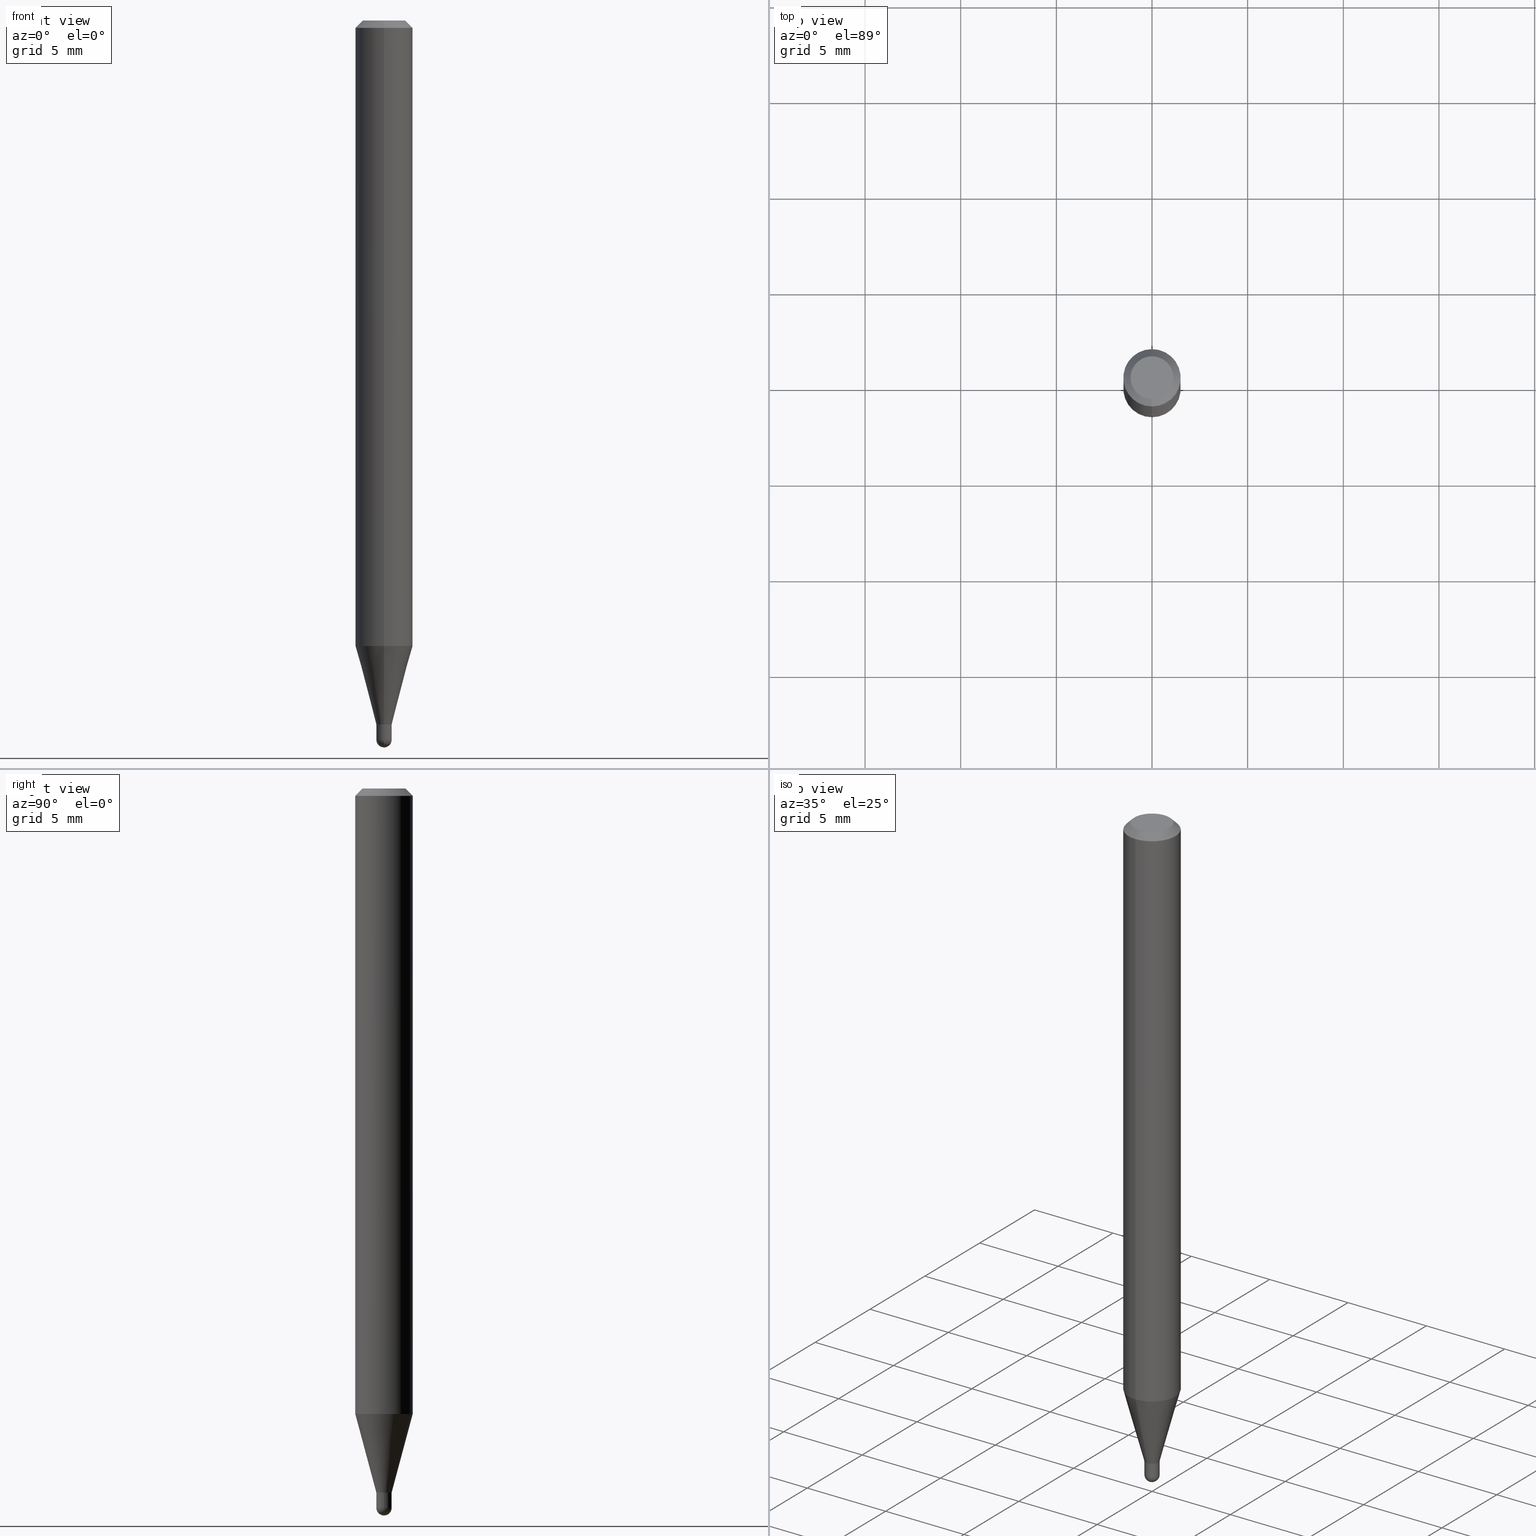
[diagram: canonical four-view strip — front | top / right | iso, engineering-drawing reading convention]
A machine part, canonical four-view strip (front | top / right | iso — engineering-drawing reading convention). The complete STEP part file that produces these views, byte-faithful:
ISO-10303-21;
HEADER;
FILE_DESCRIPTION (( 'STEP AP203' ),
    '1' );
FILE_NAME ('05050.STEP',
    '2024-03-08T21:14:56',
    ( '' ),
    ( '' ),
    'SwSTEP 2.0',
    'SolidWorks 2023',
    '' );
FILE_SCHEMA (( 'CONFIG_CONTROL_DESIGN' ));
ENDSEC;

DATA;
#1 = DIRECTION ( 'NONE',  ( -2.445468806185136597E-29, 3.491481338843145583E-15, 1.000000000000000000 ) ) ;
#2 = ORIENTED_EDGE ( 'NONE', *, *, #243, .T. ) ;
#3 = EDGE_CURVE ( 'NONE', #98, #28, #457, .T. ) ;
#4 = FACE_OUTER_BOUND ( 'NONE', #6, .T. ) ;
#5 = CARTESIAN_POINT ( 'NONE',  ( 3.656645550575395810E-29, -5.226498459106215376E-15, -1.496099999999999985 ) ) ;
#6 = EDGE_LOOP ( 'NONE', ( #297, #286, #281, #486, #69 ) ) ;
#7 = DIRECTION ( 'NONE',  ( -6.982962677686265922E-15, -1.000000000000000000, 3.505890868245046092E-15 ) ) ;
#8 = EDGE_CURVE ( 'NONE', #148, #409, #408, .T. ) ;
#9 = CIRCLE ( 'NONE', #324, 0.05904999999999999832 ) ;
#10 = ORIENTED_EDGE ( 'NONE', *, *, #497, .F. ) ;
#11 = DIRECTION ( 'NONE',  ( -6.982962677686265922E-15, -1.000000000000000000, 3.491515819682548909E-15 ) ) ;
#12 = DIRECTION ( 'NONE',  ( 2.445444728343672060E-29, -3.491515819682548515E-15, -1.000000000000000000 ) ) ;
#13 = ORIENTED_EDGE ( 'NONE', *, *, #294, .F. ) ;
#14 = CONICAL_SURFACE ( 'NONE', #484, 0.01574999999999964970, 0.2617993877991573459 ) ;
#15 = AXIS2_PLACEMENT_3D ( 'NONE', #464, #228, #71 ) ;
#16 = ORIENTED_EDGE ( 'NONE', *, *, #221, .F. ) ;
#17 =( GEOMETRIC_REPRESENTATION_CONTEXT ( 3 ) GLOBAL_UNCERTAINTY_ASSIGNED_CONTEXT ( ( #272 ) ) GLOBAL_UNIT_ASSIGNED_CONTEXT ( ( #439, #125, #245 ) ) REPRESENTATION_CONTEXT ( 'NONE', 'WORKASPACE' ) );
#18 = PERSON ( 'UNSPECIFIED', 'UNSPECIFIED', 'UNSPECIFIED', ('UNSPECIFIED'), ('UNSPECIFIED'), ('UNSPECIFIED') ) ;
#19 = PERSON_AND_ORGANIZATION_ROLE ( 'classification_officer' ) ;
#20 = APPROVAL ( #329, 'UNSPECIFIED' ) ;
#21 = CARTESIAN_POINT ( 'NONE',  ( 1.119104808822521909E-16, 0.01574999999999508737, -1.448400000000000132 ) ) ;
#22 = PERSON_AND_ORGANIZATION ( #18, #134 ) ;
#23 = VECTOR ( 'NONE', #201, 39.37007874015748143 ) ;
#24 = ADVANCED_FACE ( 'NONE', ( #104 ), #85, .T. ) ;
#25 = CARTESIAN_POINT ( 'NONE',  ( -0.01575000000000000011, -5.001800375020926187E-15, -1.448899999999999855 ) ) ;
#26 = EDGE_LOOP ( 'NONE', ( #316, #293, #353, #219 ) ) ;
#27 = PERSON_AND_ORGANIZATION_ROLE ( 'creator' ) ;
#28 = VERTEX_POINT ( 'NONE', #404 ) ;
#29 = CC_DESIGN_PERSON_AND_ORGANIZATION_ASSIGNMENT ( #145, #19, ( #325 ) ) ;
#30 = LINE ( 'NONE', #186, #508 ) ;
#31 = VERTEX_POINT ( 'NONE', #25 ) ;
#32 = FACE_OUTER_BOUND ( 'NONE', #241, .T. ) ;
#33 = VECTOR ( 'NONE', #418, 39.37007874015748854 ) ;
#34 = FACE_OUTER_BOUND ( 'NONE', #84, .T. ) ;
#35 = EDGE_CURVE ( 'NONE', #416, #208, #30, .T. ) ;
#36 = DIRECTION ( 'NONE',  ( -6.982962677686265922E-15, -1.000000000000000000, 0.000000000000000000 ) ) ;
#37 = EDGE_CURVE ( 'NONE', #191, #128, #332, .T. ) ;
#38 = DIRECTION ( 'NONE',  ( -6.982962677686265922E-15, -1.000000000000000000, 0.000000000000000000 ) ) ;
#39 = ORIENTED_EDGE ( 'NONE', *, *, #100, .F. ) ;
#40 = CARTESIAN_POINT ( 'NONE',  ( 3.543204866897145919E-29, -5.058857271138045478E-15, -1.448899999999999855 ) ) ;
#41 = CARTESIAN_POINT ( 'NONE',  ( 1.101341240428516307E-16, 0.01524999999999494121, -1.448899999999999633 ) ) ;
#42 = CIRCLE ( 'NONE', #475, 0.01524999999999999793 ) ;
#43 = LINE ( 'NONE', #47, #76 ) ;
#44 = AXIS2_PLACEMENT_3D ( 'NONE', #428, #506, #195 ) ;
#45 = ORIENTED_EDGE ( 'NONE', *, *, #341, .F. ) ;
#46 = CARTESIAN_POINT ( 'NONE',  ( 1.083577672034506761E-16, 0.01524999999999494121, -1.448899999999999633 ) ) ;
#47 = CARTESIAN_POINT ( 'NONE',  ( 0.01575000000000000011, -1.099816621735586938E-16, 7.679978421878599434E-31 ) ) ;
#48 = ORIENTED_EDGE ( 'NONE', *, *, #8, .F. ) ;
#49 = DIRECTION ( 'NONE',  ( 6.982962677686265922E-15, 1.000000000000000000, -3.491515819682548515E-15 ) ) ;
#50 = ORIENTED_EDGE ( 'NONE', *, *, #257, .F. ) ;
#51 = CARTESIAN_POINT ( 'NONE',  ( 0.000000000000000000, 0.000000000000000000, 0.000000000000000000 ) ) ;
#52 = EDGE_CURVE ( 'NONE', #230, #225, #331, .T. ) ;
#53 = ORIENTED_EDGE ( 'NONE', *, *, #99, .F. ) ;
#54 = CYLINDRICAL_SURFACE ( 'NONE', #511, 0.05904999999999999832 ) ;
#55 = CARTESIAN_POINT ( 'NONE',  ( 1.119104808822152131E-16, 0.01574999999999992378, -5.499137415999987375E-17 ) ) ;
#56 = EDGE_CURVE ( 'NONE', #230, #91, #60, .T. ) ;
#57 = CIRCLE ( 'NONE', #319, 0.05904999999999999832 ) ;
#58 = DATE_AND_TIME ( #455, #175 ) ;
#59 = CC_DESIGN_PERSON_AND_ORGANIZATION_ASSIGNMENT ( #427, #88, ( #66 ) ) ;
#60 = LINE ( 'NONE', #217, #235 ) ;
#61 = MANIFOLD_SOLID_BREP ( 'Body-Move/Copy2[2]', #258 ) ;
#62 = ADVANCED_FACE ( 'NONE', ( #265 ), #72, .F. ) ;
#63 = DIRECTION ( 'NONE',  ( -4.851104656540964275E-15, -0.7071067811865500152, -0.7071067811865450192 ) ) ;
#64 = CIRCLE ( 'NONE', #317, 0.01575000000000019787 ) ;
#65 = LOCAL_TIME ( 16, 14, 56.00000000000000000, #143 ) ;
#66 = PRODUCT ( '05050', '05050', '', ( #442 ) ) ;
#67 = DIRECTION ( 'NONE',  ( -2.445444728343672340E-29, 3.491515819682548515E-15, 1.000000000000000000 ) ) ;
#68 = ORIENTED_EDGE ( 'NONE', *, *, #341, .T. ) ;
#69 = ORIENTED_EDGE ( 'NONE', *, *, #320, .F. ) ;
#70 = ORIENTED_EDGE ( 'NONE', *, *, #257, .T. ) ;
#71 = DIRECTION ( 'NONE',  ( -6.982962677686265133E-15, -1.000000000000000000, 0.000000000000000000 ) ) ;
#72 = PLANE ( 'NONE',  #188 ) ;
#73 = ORIENTED_EDGE ( 'NONE', *, *, #320, .T. ) ;
#74 = ADVANCED_FACE ( 'NONE', ( #310 ), #14, .T. ) ;
#75 = PRODUCT_RELATED_PRODUCT_CATEGORY ( 'detail', '', ( #66 ) ) ;
#76 = VECTOR ( 'NONE', #200, 39.37007874015748143 ) ;
#77 = DIRECTION ( 'NONE',  ( 1.000000000000000000, -6.982962677686265922E-15, 4.883557194083112901E-29 ) ) ;
#78 = AXIS2_PLACEMENT_3D ( 'NONE', #306, #121, #388 ) ;
#79 = DIRECTION ( 'NONE',  ( -2.445444728343672060E-29, 3.491515819682548515E-15, 1.000000000000000000 ) ) ;
#80 = DIRECTION ( 'NONE',  ( -6.982962677686265133E-15, -1.000000000000000000, 3.491515819682548515E-15 ) ) ;
#81 = DIRECTION ( 'NONE',  ( -6.982962677686265133E-15, -1.000000000000000000, 0.000000000000000000 ) ) ;
#82 = ADVANCED_FACE ( 'NONE', ( #190 ), #202, .F. ) ;
#83 = DIRECTION ( 'NONE',  ( -2.445444728343672060E-29, 3.491515819682548515E-15, 1.000000000000000000 ) ) ;
#84 = EDGE_LOOP ( 'NONE', ( #454, #393, #124, #381 ) ) ;
#85 = CONICAL_SURFACE ( 'NONE', #152, 0.05904999999999999832, 0.7853981633974483900 ) ;
#86 = DIRECTION ( 'NONE',  ( -2.445444728343672060E-29, 3.491515819682548515E-15, 1.000000000000000000 ) ) ;
#87 = AXIS2_PLACEMENT_3D ( 'NONE', #376, #189, #238 ) ;
#88 = PERSON_AND_ORGANIZATION_ROLE ( 'design_owner' ) ;
#89 = DIRECTION ( 'NONE',  ( -6.982962677686265922E-15, -1.000000000000000000, 3.505890868245046092E-15 ) ) ;
#90 = ORIENTED_EDGE ( 'NONE', *, *, #129, .F. ) ;
#91 = VERTEX_POINT ( 'NONE', #116 ) ;
#92 = CARTESIAN_POINT ( 'NONE',  ( 3.668167092515527743E-31, -5.237273729523851294E-17, -0.01500000000000008098 ) ) ;
#93 = ADVANCED_FACE ( 'NONE', ( #34 ), #196, .T. ) ;
#94 = EDGE_LOOP ( 'NONE', ( #136, #183, #441, #16 ) ) ;
#95 = CARTESIAN_POINT ( 'NONE',  ( 3.668167092515527743E-31, -5.237273729523851294E-17, -0.01500000000000008098 ) ) ;
#96 = CIRCLE ( 'NONE', #259, 0.04404999999999999888 ) ;
#97 = PRODUCT_DEFINITION_FORMATION_WITH_SPECIFIED_SOURCE ( 'ANY', '', #66, .NOT_KNOWN. ) ;
#98 = VERTEX_POINT ( 'NONE', #5 ) ;
#99 = EDGE_CURVE ( 'NONE', #248, #386, #42, .T. ) ;
#100 = EDGE_CURVE ( 'NONE', #98, #128, #179, .T. ) ;
#101 = SHAPE_DEFINITION_REPRESENTATION ( #141, #178 ) ;
#102 = AXIS2_PLACEMENT_3D ( 'NONE', #383, #372, #149 ) ;
#103 = APPROVAL_STATUS ( 'not_yet_approved' ) ;
#104 = FACE_OUTER_BOUND ( 'NONE', #26, .T. ) ;
#105 = CALENDAR_DATE ( 2024, 8, 3 ) ;
#106 = CARTESIAN_POINT ( 'NONE',  ( 3.618802860330709271E-29, -5.170543218665107732E-15, -1.480350000000000055 ) ) ;
#107 = ORIENTED_EDGE ( 'NONE', *, *, #203, .T. ) ;
#108 = DATE_TIME_ROLE ( 'classification_date' ) ;
#109 = CIRCLE ( 'NONE', #44, 0.05904999999999999832 ) ;
#110 = CARTESIAN_POINT ( 'NONE',  ( 3.668167092515527743E-31, -5.237273729523851294E-17, -0.01500000000000008098 ) ) ;
#111 = ORIENTED_EDGE ( 'NONE', *, *, #100, .T. ) ;
#112 = FACE_OUTER_BOUND ( 'NONE', #223, .T. ) ;
#113 = EDGE_CURVE ( 'NONE', #248, #91, #336, .T. ) ;
#114 = CARTESIAN_POINT ( 'NONE',  ( 3.620149747236166990E-29, -5.168614399956450325E-15, -1.480350000000000055 ) ) ;
#115 = CC_DESIGN_DATE_AND_TIME_ASSIGNMENT ( #398, #444, ( #380 ) ) ;
#116 = CARTESIAN_POINT ( 'NONE',  ( -1.099816621735250193E-16, -0.01575000000000530490, -1.448400000000000132 ) ) ;
#117 = AXIS2_PLACEMENT_3D ( 'NONE', #308, #83, #338 ) ;
#118 = CARTESIAN_POINT ( 'NONE',  ( 1.119104808822486904E-16, 0.01574999999999459124, -1.448899999999999855 ) ) ;
#119 = CYLINDRICAL_SURFACE ( 'NONE', #207, 0.01574999999999992378 ) ;
#120 = CARTESIAN_POINT ( 'NONE',  ( 0.01575000000000000358, -5.223692518076700144E-15, -1.480350000000000055 ) ) ;
#121 = DIRECTION ( 'NONE',  ( -2.445444728343672060E-29, 3.491515819682548515E-15, 1.000000000000000000 ) ) ;
#122 = LINE ( 'NONE', #382, #407 ) ;
#123 = DIRECTION ( 'NONE',  ( -2.445444728343672060E-29, 3.491515819682548515E-15, 1.000000000000000000 ) ) ;
#124 = ORIENTED_EDGE ( 'NONE', *, *, #351, .F. ) ;
#125 =( NAMED_UNIT ( * ) PLANE_ANGLE_UNIT ( ) SI_UNIT ( $, .RADIAN. ) );
#126 = DIRECTION ( 'NONE',  ( -6.982962677686265922E-15, -1.000000000000000000, 0.000000000000000000 ) ) ;
#127 = CIRCLE ( 'NONE', #466, 0.01575000000000000358 ) ;
#128 = VERTEX_POINT ( 'NONE', #345 ) ;
#129 = EDGE_CURVE ( 'NONE', #260, #244, #43, .T. ) ;
#130 = ORIENTED_EDGE ( 'NONE', *, *, #369, .F. ) ;
#131 = DIRECTION ( 'NONE',  ( -6.982962677686265922E-15, -1.000000000000000000, 4.626330217890369336E-15 ) ) ;
#132 = FACE_OUTER_BOUND ( 'NONE', #415, .T. ) ;
#133 = CONICAL_SURFACE ( 'NONE', #153, 0.01524999999999999793, 0.7853981633980202659 ) ;
#134 = ORGANIZATION ( 'UNSPECIFIED', 'UNSPECIFIED', '' ) ;
#135 = ADVANCED_FACE ( 'NONE', ( #161 ), #133, .T. ) ;
#136 = ORIENTED_EDGE ( 'NONE', *, *, #436, .T. ) ;
#137 = APPROVAL_DATE_TIME ( #256, #157 ) ;
#138 = LINE ( 'NONE', #118, #23 ) ;
#139 = CARTESIAN_POINT ( 'NONE',  ( 4.195754854663390985E-16, 0.05904999999999999832, -2.061740091522544969E-16 ) ) ;
#140 = CONICAL_SURFACE ( 'NONE', #303, 0.05904999999999999832, 0.7853981633974483900 ) ;
#141 = PRODUCT_DEFINITION_SHAPE ( 'NONE', 'NONE',  #380 ) ;
#142 = VERTEX_POINT ( 'NONE', #468 ) ;
#143 = COORDINATED_UNIVERSAL_TIME_OFFSET ( 5, 0, .BEHIND. ) ;
#144 = DIRECTION ( 'NONE',  ( 2.438088387897960049E-29, -3.491481338843145188E-15, -1.000000000000000000 ) ) ;
#145 = PERSON_AND_ORGANIZATION ( #18, #134 ) ;
#146 = ORIENTED_EDGE ( 'NONE', *, *, #56, .T. ) ;
#147 = ADVANCED_FACE ( 'NONE', ( #229 ), #375, .F. ) ;
#148 = VERTEX_POINT ( 'NONE', #156 ) ;
#149 = DIRECTION ( 'NONE',  ( -6.982962677686265922E-15, -1.000000000000000000, 0.000000000000000000 ) ) ;
#150 = CYLINDRICAL_SURFACE ( 'NONE', #476, 0.01575000000000000011 ) ;
#151 = CARTESIAN_POINT ( 'NONE',  ( 3.543204866897145358E-29, -5.058857271138043900E-15, -1.448899999999999633 ) ) ;
#152 = AXIS2_PLACEMENT_3D ( 'NONE', #110, #254, #222 ) ;
#153 = AXIS2_PLACEMENT_3D ( 'NONE', #151, #79, #377 ) ;
#154 = DIRECTION ( 'NONE',  ( -2.445468806185136597E-29, 3.491481338843145583E-15, 1.000000000000000000 ) ) ;
#155 = CIRCLE ( 'NONE', #392, 0.01575000000000000358 ) ;
#156 = CARTESIAN_POINT ( 'NONE',  ( 4.195754854663704558E-16, 0.05904999999999550192, -1.287302200032271582 ) ) ;
#157 = APPROVAL ( #103, 'UNSPECIFIED' ) ;
#158 = CARTESIAN_POINT ( 'NONE',  ( 4.195754854663708009E-16, 0.05904999999999994975, -0.01500000000000028741 ) ) ;
#159 = DIRECTION ( 'NONE',  ( -6.982962677686265922E-15, -1.000000000000000000, 3.491515819682548515E-15 ) ) ;
#160 = LINE ( 'NONE', #46, #246 ) ;
#161 = FACE_OUTER_BOUND ( 'NONE', #187, .T. ) ;
#162 = ORIENTED_EDGE ( 'NONE', *, *, #448, .F. ) ;
#163 = CARTESIAN_POINT ( 'NONE',  ( 0.000000000000000000, 0.000000000000000000, 0.000000000000000000 ) ) ;
#164 = EDGE_CURVE ( 'NONE', #479, #416, #96, .T. ) ;
#165 = CC_DESIGN_PERSON_AND_ORGANIZATION_ASSIGNMENT ( #490, #27, ( #97 ) ) ;
#166 = APPROVAL_PERSON_ORGANIZATION ( #209, #157, #362 ) ;
#167 = ORIENTED_EDGE ( 'NONE', *, *, #173, .F. ) ;
#168 = DIRECTION ( 'NONE',  ( 1.000000000000000000, 0.000000000000000000, 0.000000000000000000 ) ) ;
#169 = CARTESIAN_POINT ( 'NONE',  ( 0.01575000000000000011, -5.168788974023392870E-15, -1.448899999999999855 ) ) ;
#170 = ORIENTED_EDGE ( 'NONE', *, *, #370, .T. ) ;
#171 = DIRECTION ( 'NONE',  ( -2.445468806185136597E-29, 3.491481338843145583E-15, 1.000000000000000000 ) ) ;
#172 = CARTESIAN_POINT ( 'NONE',  ( -4.123439461173739834E-16, -0.05904999999999999832, 2.061740091522544969E-16 ) ) ;
#173 = EDGE_CURVE ( 'NONE', #230, #142, #291, .T. ) ;
#174 = DIRECTION ( 'NONE',  ( -2.445444728343672060E-29, 3.491515819682548515E-15, 1.000000000000000000 ) ) ;
#175 = LOCAL_TIME ( 16, 14, 56.00000000000000000, #296 ) ;
#176 = DIRECTION ( 'NONE',  ( -2.445444728343672340E-29, 3.491515819682548515E-15, 1.000000000000000000 ) ) ;
#177 = APPROVAL_DATE_TIME ( #287, #443 ) ;
#178 = ADVANCED_BREP_SHAPE_REPRESENTATION ( '05050', ( #389, #61, #334 ), #17 ) ;
#179 = CIRCLE ( 'NONE', #102, 0.01574999999999998276 ) ;
#180 = ORIENTED_EDGE ( 'NONE', *, *, #35, .T. ) ;
#181 = CC_DESIGN_APPROVAL ( #20, ( #97 ) ) ;
#182 = CALENDAR_DATE ( 2024, 8, 3 ) ;
#183 = ORIENTED_EDGE ( 'NONE', *, *, #8, .T. ) ;
#184 = ORIENTED_EDGE ( 'NONE', *, *, #3, .F. ) ;
#185 = EDGE_CURVE ( 'NONE', #244, #31, #218, .T. ) ;
#186 = CARTESIAN_POINT ( 'NONE',  ( -4.051124067684085231E-16, -0.05905000000000005383, -0.01499999999999987454 ) ) ;
#187 = EDGE_LOOP ( 'NONE', ( #499, #384, #213, #311 ) ) ;
#188 = AXIS2_PLACEMENT_3D ( 'NONE', #501, #144, #453 ) ;
#189 = DIRECTION ( 'NONE',  ( -2.445468806185136597E-29, 3.491481338843145583E-15, 1.000000000000000000 ) ) ;
#190 = FACE_OUTER_BOUND ( 'NONE', #459, .T. ) ;
#191 = VERTEX_POINT ( 'NONE', #239 ) ;
#192 = FACE_OUTER_BOUND ( 'NONE', #292, .T. ) ;
#193 = CARTESIAN_POINT ( 'NONE',  ( 1.968598619526925023E-45, -2.810692526810415636E-31, -8.050063846097556128E-17 ) ) ;
#194 = LINE ( 'NONE', #337, #277 ) ;
#195 = DIRECTION ( 'NONE',  ( -6.982962677686265922E-15, -1.000000000000000000, 4.626330217890369336E-15 ) ) ;
#196 = CONICAL_SURFACE ( 'NONE', #252, 0.01524999999999999793, 0.7853981633980202659 ) ;
#197 = AXIS2_PLACEMENT_3D ( 'NONE', #198, #77, #344 ) ;
#198 = CARTESIAN_POINT ( 'NONE',  ( 3.618802860330709271E-29, -5.170543218665107732E-15, -1.480350000000000055 ) ) ;
#199 = APPROVAL_PERSON_ORGANIZATION ( #262, #443, #321 ) ;
#200 = DIRECTION ( 'NONE',  ( -2.445468806185136877E-29, 3.491481338843145188E-15, 1.000000000000000000 ) ) ;
#201 = DIRECTION ( 'NONE',  ( 1.839019923739648830E-15, 0.2588190451025317862, 0.9659258262890653146 ) ) ;
#202 = PLANE ( 'NONE',  #390 ) ;
#203 = EDGE_CURVE ( 'NONE', #148, #225, #109, .T. ) ;
#204 = ORIENTED_EDGE ( 'NONE', *, *, #456, .T. ) ;
#205 = LINE ( 'NONE', #172, #419 ) ;
#206 = APPLICATION_PROTOCOL_DEFINITION ( 'international standard', 'config_control_design', 1994, #227 ) ;
#207 = AXIS2_PLACEMENT_3D ( 'NONE', #270, #422, #159 ) ;
#208 = VERTEX_POINT ( 'NONE', #347 ) ;
#209 = PERSON_AND_ORGANIZATION ( #18, #134 ) ;
#210 = ADVANCED_FACE ( 'NONE', ( #302 ), #119, .F. ) ;
#211 =( LENGTH_UNIT ( ) NAMED_UNIT ( * ) SI_UNIT ( $, .METRE. ) );
#212 = EDGE_CURVE ( 'NONE', #208, #409, #500, .T. ) ;
#213 = ORIENTED_EDGE ( 'NONE', *, *, #113, .T. ) ;
#214 = CIRCLE ( 'NONE', #78, 0.01524999999999999793 ) ;
#215 = LOCAL_TIME ( 16, 14, 56.00000000000000000, #498 ) ;
#216 = EDGE_CURVE ( 'NONE', #386, #248, #214, .T. ) ;
#217 = CARTESIAN_POINT ( 'NONE',  ( -1.099816621735581514E-16, -0.01574999999999992378, 5.499137415999987375E-17 ) ) ;
#218 = CIRCLE ( 'NONE', #435, 0.01575000000000000011 ) ;
#219 = ORIENTED_EDGE ( 'NONE', *, *, #497, .T. ) ;
#220 = COORDINATED_UNIVERSAL_TIME_OFFSET ( 5, 0, .BEHIND. ) ;
#221 = EDGE_CURVE ( 'NONE', #225, #208, #205, .T. ) ;
#222 = DIRECTION ( 'NONE',  ( 6.982962677686265922E-15, 1.000000000000000000, -3.505890868245046092E-15 ) ) ;
#223 = EDGE_LOOP ( 'NONE', ( #50, #170, #451, #348 ) ) ;
#224 = APPROVAL_STATUS ( 'not_yet_approved' ) ;
#225 = VERTEX_POINT ( 'NONE', #285 ) ;
#226 = DIRECTION ( 'NONE',  ( 1.000000000000000000, -6.982962677686286432E-15, 0.000000000000000000 ) ) ;
#227 = APPLICATION_CONTEXT ( 'configuration controlled 3d designs of mechanical parts and assemblies' ) ;
#228 = DIRECTION ( 'NONE',  ( -2.445444728343672060E-29, 3.491515819682548515E-15, 1.000000000000000000 ) ) ;
#229 = FACE_OUTER_BOUND ( 'NONE', #295, .T. ) ;
#230 = VERTEX_POINT ( 'NONE', #318 ) ;
#231 = CARTESIAN_POINT ( 'NONE',  ( 3.620149747236166990E-29, -5.168614399956450325E-15, -1.480350000000000055 ) ) ;
#232 = DIRECTION ( 'NONE',  ( -2.445444728343672060E-29, 3.491515819682548515E-15, 1.000000000000000000 ) ) ;
#233 = CARTESIAN_POINT ( 'NONE',  ( 1.968598619526925023E-45, -2.810692526810415636E-31, -8.050063846097556128E-17 ) ) ;
#234 = CARTESIAN_POINT ( 'NONE',  ( 3.543204866897145358E-29, -5.058857271138043900E-15, -1.448899999999999633 ) ) ;
#235 = VECTOR ( 'NONE', #495, 39.37007874015748143 ) ;
#236 = EDGE_LOOP ( 'NONE', ( #48, #107, #328, #10 ) ) ;
#237 = CIRCLE ( 'NONE', #364, 0.01575000000000000358 ) ;
#238 = DIRECTION ( 'NONE',  ( 1.000000000000000000, -6.982962677686265922E-15, 4.876176775795936353E-29 ) ) ;
#239 = CARTESIAN_POINT ( 'NONE',  ( -0.01575000000000000358, -5.001800375020926187E-15, -1.480350000000000055 ) ) ;
#240 = DIRECTION ( 'NONE',  ( -2.445444728343672340E-29, 3.491515819682548515E-15, 1.000000000000000000 ) ) ;
#241 = EDGE_LOOP ( 'NONE', ( #184, #111, #413, #452 ) ) ;
#242 = DIRECTION ( 'NONE',  ( -2.445444728343672060E-29, 3.491515819682548515E-15, 1.000000000000000000 ) ) ;
#243 = EDGE_CURVE ( 'NONE', #250, #91, #64, .T. ) ;
#244 = VERTEX_POINT ( 'NONE', #169 ) ;
#245 =( NAMED_UNIT ( * ) SI_UNIT ( $, .STERADIAN. ) SOLID_ANGLE_UNIT ( ) );
#246 = VECTOR ( 'NONE', #424, 39.37007874015748854 ) ;
#247 = CARTESIAN_POINT ( 'NONE',  ( -1.064901808346801140E-16, -0.01525000000000505639, -1.448899999999999633 ) ) ;
#248 = VERTEX_POINT ( 'NONE', #247 ) ;
#249 = ADVANCED_FACE ( 'NONE', ( #440 ), #289, .T. ) ;
#250 = VERTEX_POINT ( 'NONE', #21 ) ;
#251 = DIRECTION ( 'NONE',  ( 2.445444728343671780E-29, -3.491515819682548515E-15, -1.000000000000000000 ) ) ;
#252 = AXIS2_PLACEMENT_3D ( 'NONE', #234, #379, #38 ) ;
#253 = PERSON_AND_ORGANIZATION ( #18, #134 ) ;
#254 = DIRECTION ( 'NONE',  ( 2.445444728343672060E-29, -3.491515819682548515E-15, -1.000000000000000000 ) ) ;
#255 = EDGE_LOOP ( 'NONE', ( #314, #204, #2, #263 ) ) ;
#256 = DATE_AND_TIME ( #105, #65 ) ;
#257 = EDGE_CURVE ( 'NONE', #142, #148, #138, .T. ) ;
#258 = CLOSED_SHELL ( 'NONE', ( #210, #93, #429, #491, #74, #288, #249, #24, #481, #82, #135, #147 ) ) ;
#259 = AXIS2_PLACEMENT_3D ( 'NONE', #193, #86, #465 ) ;
#260 = VERTEX_POINT ( 'NONE', #120 ) ;
#261 = LOCAL_TIME ( 16, 14, 56.00000000000000000, #323 ) ;
#262 = PERSON_AND_ORGANIZATION ( #18, #134 ) ;
#263 = ORIENTED_EDGE ( 'NONE', *, *, #56, .F. ) ;
#264 = CARTESIAN_POINT ( 'NONE',  ( 3.543204866897145919E-29, -5.058857271138045478E-15, -1.448899999999999855 ) ) ;
#265 = FACE_OUTER_BOUND ( 'NONE', #313, .T. ) ;
#266 = CARTESIAN_POINT ( 'NONE',  ( 3.618802860330709271E-29, -5.170543218665107732E-15, -1.480350000000000055 ) ) ;
#267 = DIRECTION ( 'NONE',  ( -6.982962677686265922E-15, -1.000000000000000000, 3.491515819682548515E-15 ) ) ;
#268 = EDGE_CURVE ( 'NONE', #28, #191, #127, .T. ) ;
#269 = AXIS2_PLACEMENT_3D ( 'NONE', #264, #414, #271 ) ;
#270 = CARTESIAN_POINT ( 'NONE',  ( 0.000000000000000000, 0.000000000000000000, 0.000000000000000000 ) ) ;
#271 = DIRECTION ( 'NONE',  ( -6.982962677686265133E-15, -1.000000000000000000, 0.000000000000000000 ) ) ;
#272 = UNCERTAINTY_MEASURE_WITH_UNIT (LENGTH_MEASURE( 1.000000000000000082E-05 ), #439, 'distance_accuracy_value', 'NONE');
#273 = CARTESIAN_POINT ( 'NONE',  ( 3.543239753281643902E-29, -5.058807311849834201E-15, -1.448899999999999855 ) ) ;
#274 = DIRECTION ( 'NONE',  ( -2.445468806185136877E-29, 3.491481338843145188E-15, 1.000000000000000000 ) ) ;
#275 = ADVANCED_FACE ( 'NONE', ( #4 ), #460, .T. ) ;
#276 = DIRECTION ( 'NONE',  ( -2.445444728343671780E-29, 3.491515819682548515E-15, 1.000000000000000000 ) ) ;
#277 = VECTOR ( 'NONE', #299, 39.37007874015748143 ) ;
#278 = PLANE ( 'NONE',  #426 ) ;
#279 = CC_DESIGN_APPROVAL ( #443, ( #325 ) ) ;
#280 = DIRECTION ( 'NONE',  ( 1.000000000000000000, -6.982962677686286432E-15, 0.000000000000000000 ) ) ;
#281 = ORIENTED_EDGE ( 'NONE', *, *, #369, .T. ) ;
#282 = CARTESIAN_POINT ( 'NONE',  ( 3.075995059520799729E-16, 0.04404999999999999888, -1.940515910875040727E-16 ) ) ;
#283 = AXIS2_PLACEMENT_3D ( 'NONE', #114, #298, #403 ) ;
#284 = AXIS2_PLACEMENT_3D ( 'NONE', #425, #123, #340 ) ;
#285 = CARTESIAN_POINT ( 'NONE',  ( -4.123439461173426755E-16, -0.05905000000000450860, -1.287302200032271138 ) ) ;
#286 = ORIENTED_EDGE ( 'NONE', *, *, #37, .T. ) ;
#287 = DATE_AND_TIME ( #402, #261 ) ;
#288 = ADVANCED_FACE ( 'NONE', ( #112 ), #391, .T. ) ;
#289 = CYLINDRICAL_SURFACE ( 'NONE', #510, 0.05904999999999999832 ) ;
#290 = EDGE_LOOP ( 'NONE', ( #39, #496, #162, #130 ) ) ;
#291 = CIRCLE ( 'NONE', #117, 0.01574999999999964970 ) ;
#292 = EDGE_LOOP ( 'NONE', ( #471, #354, #356, #90, #367 ) ) ;
#293 = ORIENTED_EDGE ( 'NONE', *, *, #164, .F. ) ;
#294 = EDGE_CURVE ( 'NONE', #479, #409, #194, .T. ) ;
#295 = EDGE_LOOP ( 'NONE', ( #309, #167, #146, #482 ) ) ;
#296 = COORDINATED_UNIVERSAL_TIME_OFFSET ( 5, 0, .BEHIND. ) ;
#297 = ORIENTED_EDGE ( 'NONE', *, *, #300, .F. ) ;
#298 = DIRECTION ( 'NONE',  ( -2.445468806185136597E-29, 3.491481338843145583E-15, 1.000000000000000000 ) ) ;
#299 = DIRECTION ( 'NONE',  ( 4.937700262164548042E-15, 0.7071067811865451302, -0.7071067811865499042 ) ) ;
#300 = EDGE_CURVE ( 'NONE', #191, #31, #122, .T. ) ;
#301 = DIRECTION ( 'NONE',  ( -2.445468806185136597E-29, 3.491481338843145583E-15, 1.000000000000000000 ) ) ;
#302 = FACE_OUTER_BOUND ( 'NONE', #255, .T. ) ;
#303 = AXIS2_PLACEMENT_3D ( 'NONE', #95, #12, #350 ) ;
#304 = CC_DESIGN_SECURITY_CLASSIFICATION ( #325, ( #97 ) ) ;
#305 = CARTESIAN_POINT ( 'NONE',  ( 3.620149747236166990E-29, -5.168614399956450325E-15, -1.480350000000000055 ) ) ;
#306 = CARTESIAN_POINT ( 'NONE',  ( 3.543204866897145358E-29, -5.058857271138043900E-15, -1.448899999999999633 ) ) ;
#307 = FACE_OUTER_BOUND ( 'NONE', #290, .T. ) ;
#308 = CARTESIAN_POINT ( 'NONE',  ( 3.543204866897145919E-29, -5.058857271138045478E-15, -1.448899999999999855 ) ) ;
#309 = ORIENTED_EDGE ( 'NONE', *, *, #456, .F. ) ;
#310 = FACE_OUTER_BOUND ( 'NONE', #333, .T. ) ;
#311 = ORIENTED_EDGE ( 'NONE', *, *, #243, .F. ) ;
#312 = AXIS2_PLACEMENT_3D ( 'NONE', #233, #462, #80 ) ;
#313 = EDGE_LOOP ( 'NONE', ( #447, #73 ) ) ;
#314 = ORIENTED_EDGE ( 'NONE', *, *, #370, .F. ) ;
#315 = LINE ( 'NONE', #55, #502 ) ;
#316 = ORIENTED_EDGE ( 'NONE', *, *, #35, .F. ) ;
#317 = AXIS2_PLACEMENT_3D ( 'NONE', #322, #489, #433 ) ;
#318 = CARTESIAN_POINT ( 'NONE',  ( -1.099816621735208038E-16, -0.01575000000000470468, -1.448899999999999855 ) ) ;
#319 = AXIS2_PLACEMENT_3D ( 'NONE', #92, #242, #7 ) ;
#320 = EDGE_CURVE ( 'NONE', #31, #244, #493, .T. ) ;
#321 = APPROVAL_ROLE ( '' ) ;
#322 = CARTESIAN_POINT ( 'NONE',  ( 3.541982144532974804E-29, -5.057111513228203786E-15, -1.448400000000000132 ) ) ;
#323 = COORDINATED_UNIVERSAL_TIME_OFFSET ( 5, 0, .BEHIND. ) ;
#324 = AXIS2_PLACEMENT_3D ( 'NONE', #357, #472, #131 ) ;
#325 = SECURITY_CLASSIFICATION ( '', '', #488 ) ;
#326 = DATE_AND_TIME ( #182, #215 ) ;
#327 = DIRECTION ( 'NONE',  ( -1.807323732225377865E-15, -0.2588190451025250138, 0.9659258262890670910 ) ) ;
#328 = ORIENTED_EDGE ( 'NONE', *, *, #221, .T. ) ;
#329 = APPROVAL_STATUS ( 'not_yet_approved' ) ;
#330 = DIRECTION ( 'NONE',  ( 7.105427357601000281E-15, 1.000000000000000000, 0.000000000000000000 ) ) ;
#331 = LINE ( 'NONE', #361, #399 ) ;
#332 = CIRCLE ( 'NONE', #283, 0.01575000000000000358 ) ;
#333 = EDGE_LOOP ( 'NONE', ( #437, #70, #492, #431 ) ) ;
#334 = AXIS2_PLACEMENT_3D ( 'NONE', #51, #478, #168 ) ;
#335 = SPHERICAL_SURFACE ( 'NONE', #485, 0.01574999999999998276 ) ;
#336 = LINE ( 'NONE', #504, #33 ) ;
#337 = CARTESIAN_POINT ( 'NONE',  ( 4.123439461173743285E-16, 0.05904999999999994975, -0.01500000000000028741 ) ) ;
#338 = DIRECTION ( 'NONE',  ( -6.982962677686265133E-15, -1.000000000000000000, 0.000000000000000000 ) ) ;
#339 = DIRECTION ( 'NONE',  ( -2.445468806185136597E-29, 3.491481338843145583E-15, 1.000000000000000000 ) ) ;
#340 = DIRECTION ( 'NONE',  ( -6.982962677686265922E-15, -1.000000000000000000, 3.491515819682548515E-15 ) ) ;
#341 = EDGE_CURVE ( 'NONE', #416, #479, #358, .T. ) ;
#342 = AXIS2_PLACEMENT_3D ( 'NONE', #470, #232, #89 ) ;
#343 = APPROVAL_PERSON_ORGANIZATION ( #410, #20, #359 ) ;
#344 = DIRECTION ( 'NONE',  ( -6.982962677686265922E-15, -1.000000000000000000, 0.000000000000000000 ) ) ;
#345 = CARTESIAN_POINT ( 'NONE',  ( -1.099816621735224555E-16, -0.01575000000000516265, -1.480350000000000055 ) ) ;
#346 = CARTESIAN_POINT ( 'NONE',  ( 3.543239753281643902E-29, -5.058807311849834201E-15, -1.448899999999999855 ) ) ;
#347 = CARTESIAN_POINT ( 'NONE',  ( -4.123439461173736383E-16, -0.05905000000000005383, -0.01499999999999987454 ) ) ;
#348 = ORIENTED_EDGE ( 'NONE', *, *, #203, .F. ) ;
#349 = CIRCLE ( 'NONE', #269, 0.01574999999999964970 ) ;
#350 = DIRECTION ( 'NONE',  ( 6.982962677686265922E-15, 1.000000000000000000, -3.505890868245046092E-15 ) ) ;
#351 = EDGE_CURVE ( 'NONE', #91, #250, #458, .T. ) ;
#352 = CC_DESIGN_APPROVAL ( #157, ( #380 ) ) ;
#353 = ORIENTED_EDGE ( 'NONE', *, *, #294, .T. ) ;
#354 = ORIENTED_EDGE ( 'NONE', *, *, #300, .T. ) ;
#355 = EDGE_CURVE ( 'NONE', #386, #250, #160, .T. ) ;
#356 = ORIENTED_EDGE ( 'NONE', *, *, #185, .F. ) ;
#357 = CARTESIAN_POINT ( 'NONE',  ( 3.148026378854129597E-29, -4.494635996124823289E-15, -1.287302200032271360 ) ) ;
#358 = CIRCLE ( 'NONE', #312, 0.04404999999999999888 ) ;
#359 = APPROVAL_ROLE ( '' ) ;
#360 = PERSON_AND_ORGANIZATION_ROLE ( 'design_supplier' ) ;
#361 = CARTESIAN_POINT ( 'NONE',  ( -1.099816621735208038E-16, -0.01575000000000470468, -1.448899999999999855 ) ) ;
#362 = APPROVAL_ROLE ( '' ) ;
#363 = AXIS2_PLACEMENT_3D ( 'NONE', #106, #461, #330 ) ;
#364 = AXIS2_PLACEMENT_3D ( 'NONE', #305, #467, #371 ) ;
#365 = ORIENTED_EDGE ( 'NONE', *, *, #212, .T. ) ;
#366 = CALENDAR_DATE ( 2024, 8, 3 ) ;
#367 = ORIENTED_EDGE ( 'NONE', *, *, #448, .T. ) ;
#368 = ORIENTED_EDGE ( 'NONE', *, *, #216, .F. ) ;
#369 = EDGE_CURVE ( 'NONE', #128, #260, #237, .T. ) ;
#370 = EDGE_CURVE ( 'NONE', #142, #230, #349, .T. ) ;
#371 = DIRECTION ( 'NONE',  ( 1.000000000000000000, -6.982962677686284854E-15, 0.000000000000000000 ) ) ;
#372 = DIRECTION ( 'NONE',  ( -1.000000000000000000, 6.982962677686265922E-15, -4.883557194083112340E-29 ) ) ;
#373 = AXIS2_PLACEMENT_3D ( 'NONE', #346, #339, #226 ) ;
#374 = DIRECTION ( 'NONE',  ( 1.000000000000000000, -6.982962677686265922E-15, 4.883557194083112901E-29 ) ) ;
#375 = CYLINDRICAL_SURFACE ( 'NONE', #284, 0.01574999999999992378 ) ;
#376 = CARTESIAN_POINT ( 'NONE',  ( 0.000000000000000000, 0.000000000000000000, 0.000000000000000000 ) ) ;
#377 = DIRECTION ( 'NONE',  ( -6.982962677686265922E-15, -1.000000000000000000, 0.000000000000000000 ) ) ;
#378 = DIRECTION ( 'NONE',  ( -6.982962677686265133E-15, -1.000000000000000000, 0.000000000000000000 ) ) ;
#379 = DIRECTION ( 'NONE',  ( -2.445444728343672060E-29, 3.491515819682548515E-15, 1.000000000000000000 ) ) ;
#380 = PRODUCT_DEFINITION ( 'UNKNOWN', '', #97, #473 ) ;
#381 = ORIENTED_EDGE ( 'NONE', *, *, #113, .F. ) ;
#382 = CARTESIAN_POINT ( 'NONE',  ( -0.01575000000000000011, 1.119104808822157801E-16, -7.747322767151476634E-31 ) ) ;
#383 = CARTESIAN_POINT ( 'NONE',  ( 3.618802860330709271E-29, -5.170543218665107732E-15, -1.480350000000000055 ) ) ;
#384 = ORIENTED_EDGE ( 'NONE', *, *, #216, .T. ) ;
#385 = CARTESIAN_POINT ( 'NONE',  ( 3.599717260347271507E-16, 0.04404999999999999888, -2.343019103179918348E-16 ) ) ;
#386 = VERTEX_POINT ( 'NONE', #41 ) ;
#387 = LENGTH_MEASURE_WITH_UNIT ( LENGTH_MEASURE( 0.02539999999999999897 ), #211 );
#388 = DIRECTION ( 'NONE',  ( -6.982962677686265922E-15, -1.000000000000000000, 0.000000000000000000 ) ) ;
#389 = MANIFOLD_SOLID_BREP ( 'Body-Move/Copy2[1]', #446 ) ;
#390 = AXIS2_PLACEMENT_3D ( 'NONE', #40, #276, #267 ) ;
#391 = CONICAL_SURFACE ( 'NONE', #15, 0.01574999999999964970, 0.2617993877991573459 ) ;
#392 = AXIS2_PLACEMENT_3D ( 'NONE', #394, #171, #480 ) ;
#393 = ORIENTED_EDGE ( 'NONE', *, *, #355, .T. ) ;
#394 = CARTESIAN_POINT ( 'NONE',  ( 3.620149747236166990E-29, -5.168614399956450325E-15, -1.480350000000000055 ) ) ;
#395 = ADVANCED_FACE ( 'NONE', ( #32 ), #503, .T. ) ;
#396 = EDGE_LOOP ( 'NONE', ( #477, #68 ) ) ;
#397 = APPLICATION_PROTOCOL_DEFINITION ( 'international standard', 'config_control_design', 1994, #434 ) ;
#398 = DATE_AND_TIME ( #366, #438 ) ;
#399 = VECTOR ( 'NONE', #327, 39.37007874015748854 ) ;
#400 = AXIS2_PLACEMENT_3D ( 'NONE', #417, #512, #378 ) ;
#401 = DIRECTION ( 'NONE',  ( -2.445444728343672060E-29, 3.491515819682548515E-15, 1.000000000000000000 ) ) ;
#402 = CALENDAR_DATE ( 2024, 8, 3 ) ;
#403 = DIRECTION ( 'NONE',  ( 1.000000000000000000, -6.982962677686284854E-15, 0.000000000000000000 ) ) ;
#404 = CARTESIAN_POINT ( 'NONE',  ( 1.119104808822518951E-16, 0.01574999999999482370, -1.480350000000000055 ) ) ;
#405 = PERSON_AND_ORGANIZATION_ROLE ( 'creator' ) ;
#406 = VECTOR ( 'NONE', #67, 39.37007874015748143 ) ;
#407 = VECTOR ( 'NONE', #274, 39.37007874015748143 ) ;
#408 = LINE ( 'NONE', #139, #406 ) ;
#409 = VERTEX_POINT ( 'NONE', #158 ) ;
#410 = PERSON_AND_ORGANIZATION ( #18, #134 ) ;
#411 = ADVANCED_FACE ( 'NONE', ( #307 ), #335, .T. ) ;
#412 = DIMENSIONAL_EXPONENTS ( 1.000000000000000000, 0.000000000000000000, 0.000000000000000000, 0.000000000000000000, 0.000000000000000000, 0.000000000000000000, 0.000000000000000000 ) ;
#413 = ORIENTED_EDGE ( 'NONE', *, *, #37, .F. ) ;
#414 = DIRECTION ( 'NONE',  ( -2.445444728343672060E-29, 3.491515819682548515E-15, 1.000000000000000000 ) ) ;
#415 = EDGE_LOOP ( 'NONE', ( #45, #180, #365, #13 ) ) ;
#416 = VERTEX_POINT ( 'NONE', #469 ) ;
#417 = CARTESIAN_POINT ( 'NONE',  ( 3.541982144532974804E-29, -5.057111513228203786E-15, -1.448400000000000132 ) ) ;
#418 = DIRECTION ( 'NONE',  ( -4.937700262167370586E-15, -0.7071067811869493624, 0.7071067811861454500 ) ) ;
#419 = VECTOR ( 'NONE', #176, 39.37007874015748143 ) ;
#420 = ADVANCED_FACE ( 'NONE', ( #192 ), #150, .T. ) ;
#421 = CARTESIAN_POINT ( 'NONE',  ( 0.000000000000000000, 0.000000000000000000, 0.000000000000000000 ) ) ;
#422 = DIRECTION ( 'NONE',  ( -2.445444728343672060E-29, 3.491515819682548515E-15, 1.000000000000000000 ) ) ;
#423 = CARTESIAN_POINT ( 'NONE',  ( 3.543204866897145358E-29, -5.058857271138043900E-15, -1.448899999999999633 ) ) ;
#424 = DIRECTION ( 'NONE',  ( 5.024295867790934632E-15, 0.7071067811869542474, 0.7071067811861405650 ) ) ;
#425 = CARTESIAN_POINT ( 'NONE',  ( 0.000000000000000000, 0.000000000000000000, 0.000000000000000000 ) ) ;
#426 = AXIS2_PLACEMENT_3D ( 'NONE', #282, #251, #49 ) ;
#427 = PERSON_AND_ORGANIZATION ( #18, #134 ) ;
#428 = CARTESIAN_POINT ( 'NONE',  ( 3.148026378854129597E-29, -4.494635996124823289E-15, -1.287302200032271360 ) ) ;
#429 = ADVANCED_FACE ( 'NONE', ( #132 ), #140, .T. ) ;
#430 = CC_DESIGN_DATE_AND_TIME_ASSIGNMENT ( #58, #108, ( #325 ) ) ;
#431 = ORIENTED_EDGE ( 'NONE', *, *, #52, .F. ) ;
#432 = FACE_OUTER_BOUND ( 'NONE', #94, .T. ) ;
#433 = DIRECTION ( 'NONE',  ( -6.982962677686265133E-15, -1.000000000000000000, 0.000000000000000000 ) ) ;
#434 = APPLICATION_CONTEXT ( 'configuration controlled 3d designs of mechanical parts and assemblies' ) ;
#435 = AXIS2_PLACEMENT_3D ( 'NONE', #273, #1, #280 ) ;
#436 = EDGE_CURVE ( 'NONE', #225, #148, #9, .T. ) ;
#437 = ORIENTED_EDGE ( 'NONE', *, *, #173, .T. ) ;
#438 = LOCAL_TIME ( 16, 14, 56.00000000000000000, #220 ) ;
#439 =( CONVERSION_BASED_UNIT ( 'INCH', #387 ) LENGTH_UNIT ( ) NAMED_UNIT ( #412 ) );
#440 = FACE_OUTER_BOUND ( 'NONE', #236, .T. ) ;
#441 = ORIENTED_EDGE ( 'NONE', *, *, #212, .F. ) ;
#442 = MECHANICAL_CONTEXT ( 'NONE', #227, 'mechanical' ) ;
#443 = APPROVAL ( #224, 'UNSPECIFIED' ) ;
#444 = DATE_TIME_ROLE ( 'creation_date' ) ;
#445 = CARTESIAN_POINT ( 'NONE',  ( 0.000000000000000000, 0.000000000000000000, 0.000000000000000000 ) ) ;
#446 = CLOSED_SHELL ( 'NONE', ( #420, #411, #62, #395, #275 ) ) ;
#447 = ORIENTED_EDGE ( 'NONE', *, *, #185, .T. ) ;
#448 = EDGE_CURVE ( 'NONE', #260, #28, #155, .T. ) ;
#449 = CC_DESIGN_PERSON_AND_ORGANIZATION_ASSIGNMENT ( #253, #360, ( #97 ) ) ;
#450 = DIRECTION ( 'NONE',  ( -6.982962677686265922E-15, -1.000000000000000000, 3.491515819682548909E-15 ) ) ;
#451 = ORIENTED_EDGE ( 'NONE', *, *, #52, .T. ) ;
#452 = ORIENTED_EDGE ( 'NONE', *, *, #268, .F. ) ;
#453 = DIRECTION ( 'NONE',  ( -1.000000000000000000, 6.982962677686265922E-15, -4.876176775795935793E-29 ) ) ;
#454 = ORIENTED_EDGE ( 'NONE', *, *, #99, .T. ) ;
#455 = CALENDAR_DATE ( 2024, 8, 3 ) ;
#456 = EDGE_CURVE ( 'NONE', #142, #250, #315, .T. ) ;
#457 = CIRCLE ( 'NONE', #363, 0.01574999999999998276 ) ;
#458 = CIRCLE ( 'NONE', #400, 0.01575000000000019787 ) ;
#459 = EDGE_LOOP ( 'NONE', ( #53, #368 ) ) ;
#460 = CYLINDRICAL_SURFACE ( 'NONE', #87, 0.01575000000000000011 ) ;
#461 = DIRECTION ( 'NONE',  ( 1.000000000000000000, -7.105427357601001070E-15, 4.926315508542082329E-29 ) ) ;
#462 = DIRECTION ( 'NONE',  ( -2.445444728343672060E-29, 3.491515819682548515E-15, 1.000000000000000000 ) ) ;
#463 = DIRECTION ( 'NONE',  ( -2.445444728343672060E-29, 3.491515819682548515E-15, 1.000000000000000000 ) ) ;
#464 = CARTESIAN_POINT ( 'NONE',  ( 3.543204866897145919E-29, -5.058857271138045478E-15, -1.448899999999999855 ) ) ;
#465 = DIRECTION ( 'NONE',  ( -6.982962677686265133E-15, -1.000000000000000000, 3.491515819682548515E-15 ) ) ;
#466 = AXIS2_PLACEMENT_3D ( 'NONE', #231, #154, #505 ) ;
#467 = DIRECTION ( 'NONE',  ( -2.445468806185136597E-29, 3.491481338843145583E-15, 1.000000000000000000 ) ) ;
#468 = CARTESIAN_POINT ( 'NONE',  ( 2.657429831743097333E-16, 0.01574999999999459124, -1.448899999999999855 ) ) ;
#469 = CARTESIAN_POINT ( 'NONE',  ( -3.536586717851222218E-16, -0.04404999999999999888, 7.330063339604068764E-17 ) ) ;
#470 = CARTESIAN_POINT ( 'NONE',  ( 3.668167092515527743E-31, -5.237273729523851294E-17, -0.01500000000000008098 ) ) ;
#471 = ORIENTED_EDGE ( 'NONE', *, *, #268, .T. ) ;
#472 = DIRECTION ( 'NONE',  ( -2.445444728343672060E-29, 3.491515819682548515E-15, 1.000000000000000000 ) ) ;
#473 = DESIGN_CONTEXT ( 'detailed design', #434, 'design' ) ;
#474 = DIRECTION ( 'NONE',  ( -2.445444728343672060E-29, 3.491515819682548515E-15, 1.000000000000000000 ) ) ;
#475 = AXIS2_PLACEMENT_3D ( 'NONE', #423, #474, #126 ) ;
#476 = AXIS2_PLACEMENT_3D ( 'NONE', #421, #301, #487 ) ;
#477 = ORIENTED_EDGE ( 'NONE', *, *, #164, .T. ) ;
#478 = DIRECTION ( 'NONE',  ( 0.000000000000000000, 0.000000000000000000, 1.000000000000000000 ) ) ;
#479 = VERTEX_POINT ( 'NONE', #385 ) ;
#480 = DIRECTION ( 'NONE',  ( 1.000000000000000000, -6.982962677686284854E-15, 0.000000000000000000 ) ) ;
#481 = ADVANCED_FACE ( 'NONE', ( #483 ), #278, .F. ) ;
#482 = ORIENTED_EDGE ( 'NONE', *, *, #351, .T. ) ;
#483 = FACE_OUTER_BOUND ( 'NONE', #396, .T. ) ;
#484 = AXIS2_PLACEMENT_3D ( 'NONE', #509, #463, #81 ) ;
#485 = AXIS2_PLACEMENT_3D ( 'NONE', #266, #374, #36 ) ;
#486 = ORIENTED_EDGE ( 'NONE', *, *, #129, .T. ) ;
#487 = DIRECTION ( 'NONE',  ( 1.000000000000000000, -6.982962677686265922E-15, 4.876176775795936353E-29 ) ) ;
#488 = SECURITY_CLASSIFICATION_LEVEL ( 'unclassified' ) ;
#489 = DIRECTION ( 'NONE',  ( -2.445444728343672060E-29, 3.491515819682548515E-15, 1.000000000000000000 ) ) ;
#490 = PERSON_AND_ORGANIZATION ( #18, #134 ) ;
#491 = ADVANCED_FACE ( 'NONE', ( #432 ), #54, .T. ) ;
#492 = ORIENTED_EDGE ( 'NONE', *, *, #436, .F. ) ;
#493 = CIRCLE ( 'NONE', #373, 0.01575000000000000011 ) ;
#494 = APPROVAL_DATE_TIME ( #326, #20 ) ;
#495 = DIRECTION ( 'NONE',  ( -2.445444728343672340E-29, 3.491515819682548515E-15, 1.000000000000000000 ) ) ;
#496 = ORIENTED_EDGE ( 'NONE', *, *, #3, .T. ) ;
#497 = EDGE_CURVE ( 'NONE', #409, #208, #57, .T. ) ;
#498 = COORDINATED_UNIVERSAL_TIME_OFFSET ( 5, 0, .BEHIND. ) ;
#499 = ORIENTED_EDGE ( 'NONE', *, *, #355, .F. ) ;
#500 = CIRCLE ( 'NONE', #342, 0.05904999999999999832 ) ;
#501 = CARTESIAN_POINT ( 'NONE',  ( 1.099816621735941186E-16, 0.01574999999999494166, -1.448899999999999855 ) ) ;
#502 = VECTOR ( 'NONE', #240, 39.37007874015748143 ) ;
#503 = SPHERICAL_SURFACE ( 'NONE', #197, 0.01574999999999998276 ) ;
#504 = CARTESIAN_POINT ( 'NONE',  ( -1.064901808346801140E-16, -0.01525000000000505639, -1.448899999999999633 ) ) ;
#505 = DIRECTION ( 'NONE',  ( 1.000000000000000000, -6.982962677686284854E-15, 0.000000000000000000 ) ) ;
#506 = DIRECTION ( 'NONE',  ( -2.445444728343672060E-29, 3.491515819682548515E-15, 1.000000000000000000 ) ) ;
#507 = CC_DESIGN_PERSON_AND_ORGANIZATION_ASSIGNMENT ( #22, #405, ( #380 ) ) ;
#508 = VECTOR ( 'NONE', #63, 39.37007874015748143 ) ;
#509 = CARTESIAN_POINT ( 'NONE',  ( 3.543204866897145919E-29, -5.058857271138045478E-15, -1.448899999999999855 ) ) ;
#510 = AXIS2_PLACEMENT_3D ( 'NONE', #445, #401, #450 ) ;
#511 = AXIS2_PLACEMENT_3D ( 'NONE', #163, #174, #11 ) ;
#512 = DIRECTION ( 'NONE',  ( -2.445444728343672060E-29, 3.491515819682548515E-15, 1.000000000000000000 ) ) ;
ENDSEC;
END-ISO-10303-21;
